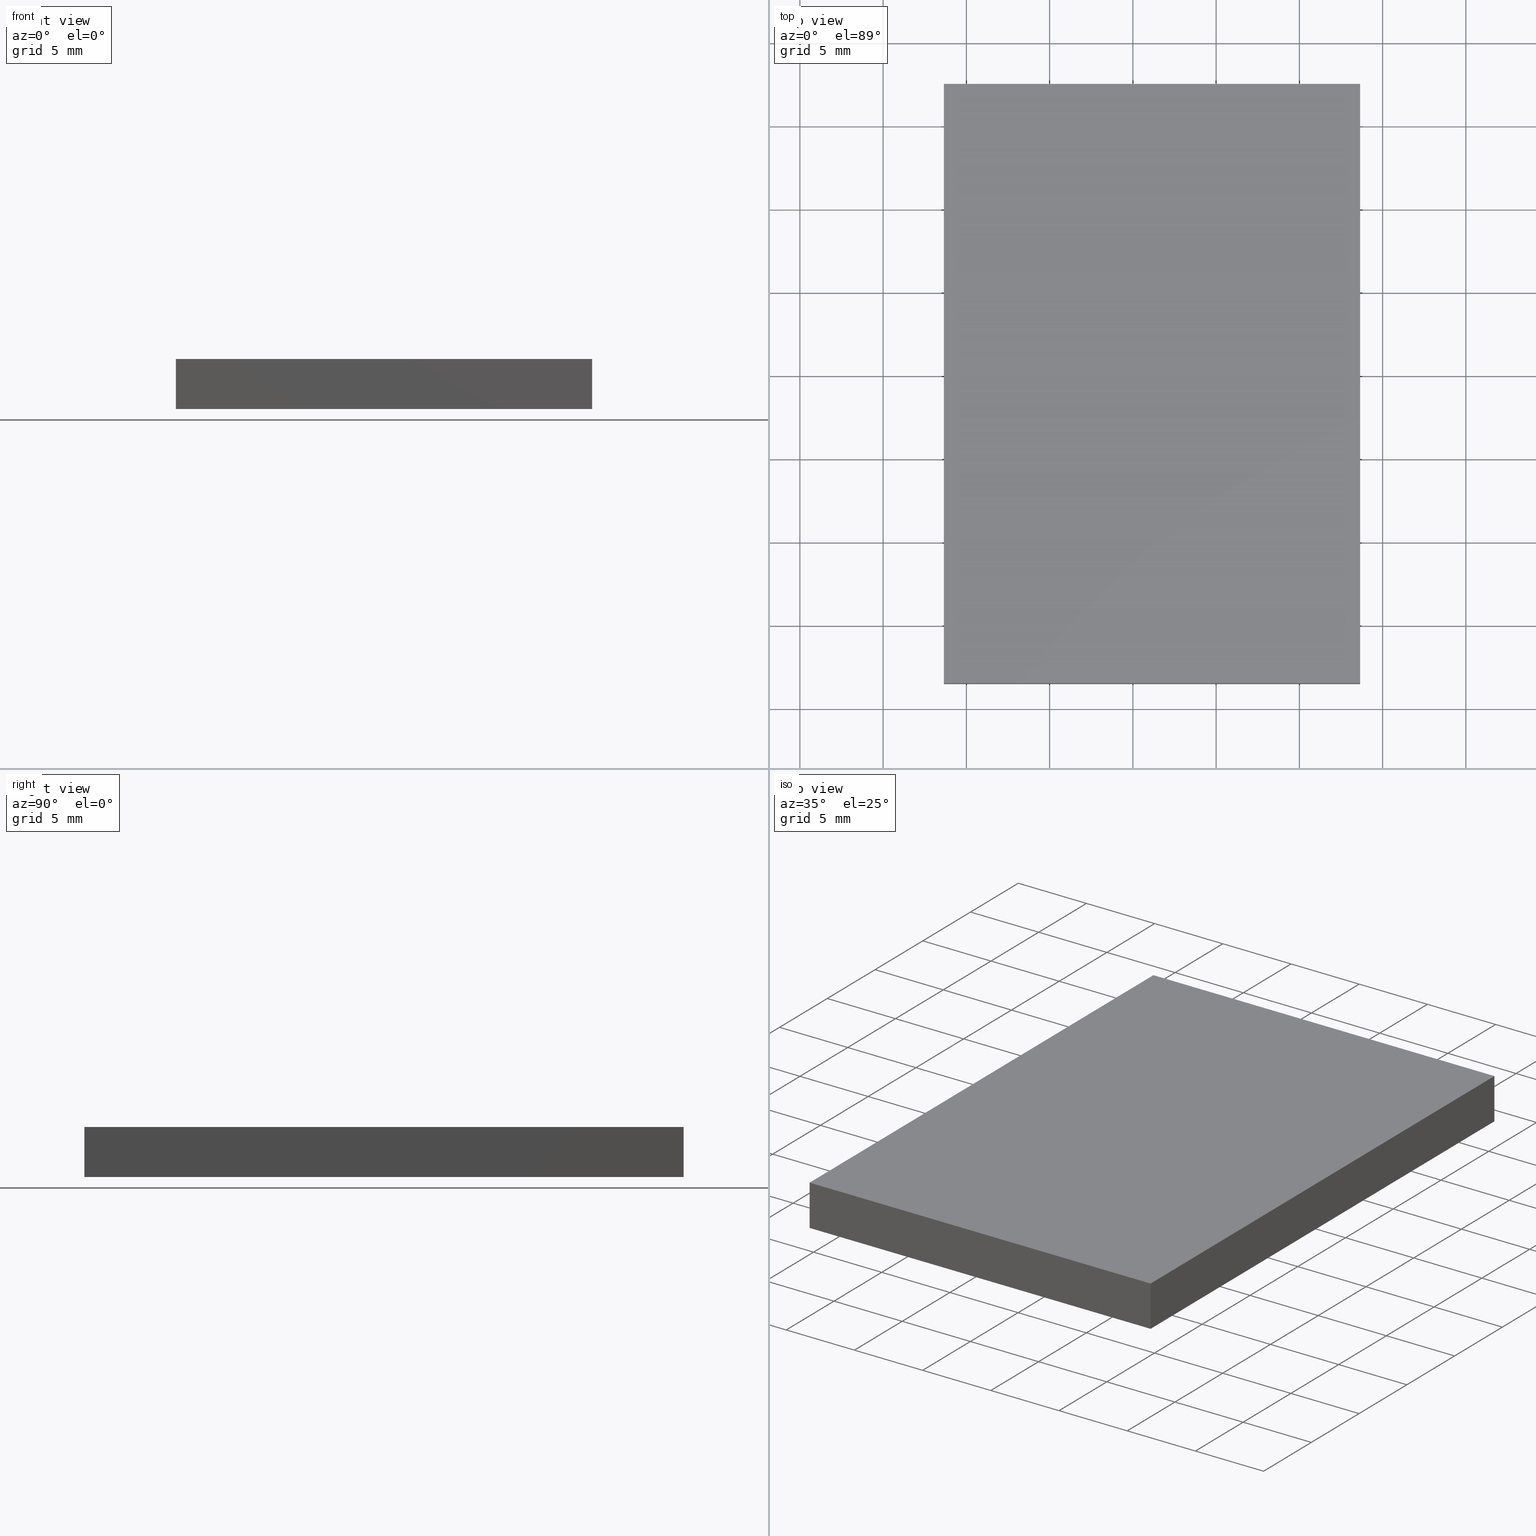
[diagram: canonical four-view strip — front | top / right | iso, engineering-drawing reading convention]
A machine part, canonical four-view strip (front | top / right | iso — engineering-drawing reading convention). The complete STEP part file that produces these views, byte-faithful:
ISO-10303-21;
HEADER;
FILE_DESCRIPTION (( 'STEP AP203' ),
    '1' );
FILE_NAME ('340525.STEP',
    '2019-07-30T07:31:13',
    ( '' ),
    ( '' ),
    'SwSTEP 2.0',
    'SolidWorks 2016',
    '' );
FILE_SCHEMA (( 'CONFIG_CONTROL_DESIGN' ));
ENDSEC;

DATA;
#1 = CARTESIAN_POINT ( 'NONE',  ( -6.351626016260162500, 7.520325203252024700, 3.000000000000000000 ) ) ;
#2 = CC_DESIGN_PERSON_AND_ORGANIZATION_ASSIGNMENT ( #145, #156, ( #206 ) ) ;
#3 = DATE_AND_TIME ( #208, #91 ) ;
#4 = EDGE_LOOP ( 'NONE', ( #311, #129, #125, #105 ) ) ;
#5 = APPROVAL_PERSON_ORGANIZATION ( #273, #241, #52 ) ;
#6 = PRODUCT_DEFINITION ( 'δ֪', '', #33, #267 ) ;
#7 = APPROVAL_STATUS ( 'not_yet_approved' ) ;
#8 = ORIENTED_EDGE ( 'NONE', *, *, #226, .F. ) ;
#9 = AXIS2_PLACEMENT_3D ( 'NONE', #213, #111, #234 ) ;
#10 = PERSON_AND_ORGANIZATION_ROLE ( 'classification_officer' ) ;
#11 = ORIENTED_EDGE ( 'NONE', *, *, #180, .F. ) ;
#12 = DIRECTION ( 'NONE',  ( 1.204669080539449300E-016, -1.000000000000000000, 0.0000000000000000000 ) ) ;
#13 = EDGE_CURVE ( 'NONE', #205, #121, #51, .T. ) ;
#14 =( NAMED_UNIT ( * ) PLANE_ANGLE_UNIT ( ) SI_UNIT ( $, .RADIAN. ) );
#15 = COORDINATED_UNIVERSAL_TIME_OFFSET ( 8, 0, .AHEAD. ) ;
#16 = COORDINATED_UNIVERSAL_TIME_OFFSET ( 8, 0, .AHEAD. ) ;
#17 = DIRECTION ( 'NONE',  ( -0.0000000000000000000, 0.0000000000000000000, 1.000000000000000000 ) ) ;
#18 = ORIENTED_EDGE ( 'NONE', *, *, #250, .T. ) ;
#19 = DIRECTION ( 'NONE',  ( 1.000000000000000000, 0.0000000000000000000, 0.0000000000000000000 ) ) ;
#20 = CARTESIAN_POINT ( 'NONE',  ( -6.351626016260158100, -28.47967479674797200, 3.000000000000000000 ) ) ;
#21 = DIRECTION ( 'NONE',  ( -2.891205793294678800E-016, 1.000000000000000000, -0.0000000000000000000 ) ) ;
#22 = VECTOR ( 'NONE', #42, 1000.000000000000000 ) ;
#23 = SECURITY_CLASSIFICATION ( '', '', #297 ) ;
#24 = DIRECTION ( 'NONE',  ( 0.0000000000000000000, -0.0000000000000000000, -1.000000000000000000 ) ) ;
#25 = LOCAL_TIME ( 15, 31, 13.00000000000000000, #59 ) ;
#26 = PERSON_AND_ORGANIZATION ( #137, #274 ) ;
#27 = VECTOR ( 'NONE', #261, 1000.000000000000000 ) ;
#28 = CARTESIAN_POINT ( 'NONE',  ( -6.351626016260162500, 7.520325203252024700, 0.0000000000000000000 ) ) ;
#29 = ORIENTED_EDGE ( 'NONE', *, *, #250, .F. ) ;
#30 = CC_DESIGN_PERSON_AND_ORGANIZATION_ASSIGNMENT ( #188, #165, ( #86 ) ) ;
#31 = PERSON_AND_ORGANIZATION ( #137, #274 ) ;
#32 = CLOSED_SHELL ( 'NONE', ( #299, #204, #126, #130, #179, #35 ) ) ;
#33 = PRODUCT_DEFINITION_FORMATION_WITH_SPECIFIED_SOURCE ( '�κ�', '', #40, .NOT_KNOWN. ) ;
#34 = AXIS2_PLACEMENT_3D ( 'NONE', #214, #308, #93 ) ;
#35 = ADVANCED_FACE ( 'NONE', ( #263 ), #147, .F. ) ;
#36 = PERSON_AND_ORGANIZATION ( #137, #274 ) ;
#37 = FACE_OUTER_BOUND ( 'NONE', #67, .T. ) ;
#38 = APPROVAL ( #143, 'δָ��' ) ;
#39 = CARTESIAN_POINT ( 'NONE',  ( -6.351626016260162500, 7.520325203252024700, 3.000000000000000000 ) ) ;
#40 = PRODUCT ( '340525', '340525', '', ( #54 ) ) ;
#41 = CARTESIAN_POINT ( 'NONE',  ( -6.351626016260162500, 7.520325203252024700, 3.000000000000000000 ) ) ;
#42 = DIRECTION ( 'NONE',  ( -1.000000000000000000, -0.0000000000000000000, -0.0000000000000000000 ) ) ;
#43 = APPLICATION_CONTEXT ( 'configuration controlled 3d designs of mechanical parts and assemblies' ) ;
#44 = LINE ( 'NONE', #195, #262 ) ;
#45 = EDGE_CURVE ( 'NONE', #205, #182, #237, .T. ) ;
#46 = CARTESIAN_POINT ( 'NONE',  ( 18.64837398373983700, 7.520325203252024700, 3.000000000000000000 ) ) ;
#47 = VECTOR ( 'NONE', #107, 1000.000000000000000 ) ;
#48 = APPROVAL ( #230, 'δָ��' ) ;
#49 = DIRECTION ( 'NONE',  ( 0.0000000000000000000, -1.000000000000000000, 0.0000000000000000000 ) ) ;
#50 = CALENDAR_DATE ( 2019, 30, 7 ) ;
#51 = LINE ( 'NONE', #39, #199 ) ;
#52 = APPROVAL_ROLE ( '' ) ;
#53 = APPROVAL ( #96, 'δָ��' ) ;
#54 = MECHANICAL_CONTEXT ( 'NONE', #142, 'mechanical' ) ;
#55 = LOCAL_TIME ( 15, 31, 13.00000000000000000, #15 ) ;
#56 = ORIENTED_EDGE ( 'NONE', *, *, #45, .F. ) ;
#57 = DATE_AND_TIME ( #50, #298 ) ;
#58 = CARTESIAN_POINT ( 'NONE',  ( 18.64837398373983700, 7.520325203252024700, 3.000000000000000000 ) ) ;
#59 = COORDINATED_UNIVERSAL_TIME_OFFSET ( 8, 0, .AHEAD. ) ;
#60 = APPROVAL_DATE_TIME ( #124, #241 ) ;
#61 = PLANE ( 'NONE',  #231 ) ;
#62 = DIRECTION ( 'NONE',  ( 1.000000000000000000, 0.0000000000000000000, 0.0000000000000000000 ) ) ;
#63 = SECURITY_CLASSIFICATION ( '', '', #252 ) ;
#64 = CARTESIAN_POINT ( 'NONE',  ( -6.351626016260162500, 7.520325203252024700, 0.0000000000000000000 ) ) ;
#65 = CARTESIAN_POINT ( 'NONE',  ( -6.351626016260162500, 7.520325203252024700, 3.000000000000000000 ) ) ;
#66 = APPROVAL_PERSON_ORGANIZATION ( #244, #38, #290 ) ;
#67 = EDGE_LOOP ( 'NONE', ( #296, #114, #8, #161 ) ) ;
#68 = PLANE ( 'NONE',  #193 ) ;
#69 = APPROVAL_DATE_TIME ( #286, #48 ) ;
#70 = APPROVAL ( #175, 'δָ��' ) ;
#71 = VERTEX_POINT ( 'NONE', #58 ) ;
#72 = CARTESIAN_POINT ( 'NONE',  ( -6.351626016260158100, -28.47967479674797200, 3.000000000000000000 ) ) ;
#73 = CALENDAR_DATE ( 2019, 30, 7 ) ;
#74 = LINE ( 'NONE', #64, #301 ) ;
#75 = EDGE_LOOP ( 'NONE', ( #18, #150, #212, #134 ) ) ;
#76 = APPROVAL_STATUS ( 'not_yet_approved' ) ;
#77 = CALENDAR_DATE ( 2019, 30, 7 ) ;
#78 = EDGE_LOOP ( 'NONE', ( #189, #275, #11, #307 ) ) ;
#79 = PERSON_AND_ORGANIZATION_ROLE ( 'design_supplier' ) ;
#80 = CC_DESIGN_PERSON_AND_ORGANIZATION_ASSIGNMENT ( #248, #79, ( #33 ) ) ;
#81 = APPROVAL_DATE_TIME ( #183, #38 ) ;
#82 = DATE_TIME_ROLE ( 'classification_date' ) ;
#83 = VECTOR ( 'NONE', #198, 1000.000000000000000 ) ;
#84 = EDGE_LOOP ( 'NONE', ( #185, #269, #29, #88 ) ) ;
#85 = EDGE_CURVE ( 'NONE', #71, #154, #104, .T. ) ;
#86 = PRODUCT ( '340525', '340525', '', ( #285 ) ) ;
#87 = FACE_OUTER_BOUND ( 'NONE', #75, .T. ) ;
#88 = ORIENTED_EDGE ( 'NONE', *, *, #109, .F. ) ;
#89 = CC_DESIGN_PERSON_AND_ORGANIZATION_ASSIGNMENT ( #305, #220, ( #122 ) ) ;
#90 = DIRECTION ( 'NONE',  ( -1.204669080539449300E-016, 1.000000000000000000, 0.0000000000000000000 ) ) ;
#91 = LOCAL_TIME ( 15, 31, 13.00000000000000000, #132 ) ;
#92 = LOCAL_TIME ( 15, 31, 13.00000000000000000, #196 ) ;
#93 = DIRECTION ( 'NONE',  ( 1.000000000000000000, 0.0000000000000000000, 0.0000000000000000000 ) ) ;
#94 = APPLICATION_PROTOCOL_DEFINITION ( 'international standard', 'config_control_design', 1994, #43 ) ;
#95 = LINE ( 'NONE', #264, #281 ) ;
#96 = APPROVAL_STATUS ( 'not_yet_approved' ) ;
#97 = PERSON_AND_ORGANIZATION_ROLE ( 'design_owner' ) ;
#98 = UNCERTAINTY_MEASURE_WITH_UNIT (LENGTH_MEASURE( 1.000000000000000100E-005 ), #138, 'distance_accuracy_value', 'NONE');
#99 = DATE_AND_TIME ( #228, #123 ) ;
#100 = APPLICATION_CONTEXT ( 'configuration controlled 3d designs of mechanical parts and assemblies' ) ;
#101 = COORDINATED_UNIVERSAL_TIME_OFFSET ( 8, 0, .AHEAD. ) ;
#102 = FACE_OUTER_BOUND ( 'NONE', #78, .T. ) ;
#103 = DATE_AND_TIME ( #215, #55 ) ;
#104 = LINE ( 'NONE', #258, #47 ) ;
#105 = ORIENTED_EDGE ( 'NONE', *, *, #226, .T. ) ;
#106 = AXIS2_PLACEMENT_3D ( 'NONE', #191, #17, #62 ) ;
#107 = DIRECTION ( 'NONE',  ( -0.0000000000000000000, -0.0000000000000000000, -1.000000000000000000 ) ) ;
#108 = CC_DESIGN_SECURITY_CLASSIFICATION ( #63, ( #33 ) ) ;
#109 = EDGE_CURVE ( 'NONE', #257, #224, #44, .T. ) ;
#110 = CARTESIAN_POINT ( 'NONE',  ( -6.351626016260162500, 7.520325203252024700, 3.000000000000000000 ) ) ;
#111 = DIRECTION ( 'NONE',  ( 0.0000000000000000000, 0.0000000000000000000, 1.000000000000000000 ) ) ;
#112 = LOCAL_TIME ( 15, 31, 13.00000000000000000, #203 ) ;
#113 = APPLICATION_PROTOCOL_DEFINITION ( 'international standard', 'config_control_design', 1994, #235 ) ;
#114 = ORIENTED_EDGE ( 'NONE', *, *, #13, .F. ) ;
#115 = DIRECTION ( 'NONE',  ( 1.204669080539449300E-016, -1.000000000000000000, 0.0000000000000000000 ) ) ;
#116 = CARTESIAN_POINT ( 'NONE',  ( 0.0000000000000000000, 0.0000000000000000000, 0.0000000000000000000 ) ) ;
#117 = CALENDAR_DATE ( 2019, 30, 7 ) ;
#118 = EDGE_LOOP ( 'NONE', ( #146, #245, #56, #282 ) ) ;
#119 = COORDINATED_UNIVERSAL_TIME_OFFSET ( 8, 0, .AHEAD. ) ;
#120 = APPROVAL ( #7, 'δָ��' ) ;
#121 = VERTEX_POINT ( 'NONE', #152 ) ;
#122 = PRODUCT_DEFINITION ( 'δ֪', '', #206, #242 ) ;
#123 = LOCAL_TIME ( 15, 31, 13.00000000000000000, #101 ) ;
#124 = DATE_AND_TIME ( #207, #112 ) ;
#125 = ORIENTED_EDGE ( 'NONE', *, *, #184, .T. ) ;
#126 = ADVANCED_FACE ( 'NONE', ( #87 ), #61, .F. ) ;
#127 = CC_DESIGN_DATE_AND_TIME_ASSIGNMENT ( #238, #82, ( #63 ) ) ;
#128 = LINE ( 'NONE', #110, #22 ) ;
#129 = ORIENTED_EDGE ( 'NONE', *, *, #180, .T. ) ;
#130 = ADVANCED_FACE ( 'NONE', ( #37 ), #315, .F. ) ;
#131 = PERSON_AND_ORGANIZATION_ROLE ( 'creator' ) ;
#132 = COORDINATED_UNIVERSAL_TIME_OFFSET ( 8, 0, .AHEAD. ) ;
#133 = LOCAL_TIME ( 15, 31, 13.00000000000000000, #16 ) ;
#134 = ORIENTED_EDGE ( 'NONE', *, *, #300, .T. ) ;
#135 = CC_DESIGN_PERSON_AND_ORGANIZATION_ASSIGNMENT ( #36, #221, ( #6 ) ) ;
#136 = EDGE_CURVE ( 'NONE', #182, #257, #172, .T. ) ;
#137 = PERSON ( 'δָ��', 'δָ��', 'δָ��', ('δָ��'), ('δָ��'), ('δָ��') ) ;
#138 =( LENGTH_UNIT ( ) NAMED_UNIT ( * ) SI_UNIT ( .MILLI., .METRE. ) );
#139 = APPROVAL_PERSON_ORGANIZATION ( #268, #53, #293 ) ;
#140 = LINE ( 'NONE', #46, #27 ) ;
#141 = VERTEX_POINT ( 'NONE', #312 ) ;
#142 = APPLICATION_CONTEXT ( 'configuration controlled 3d designs of mechanical parts and assemblies' ) ;
#143 = APPROVAL_STATUS ( 'not_yet_approved' ) ;
#144 = CC_DESIGN_APPROVAL ( #38, ( #122 ) ) ;
#145 = PERSON_AND_ORGANIZATION ( #137, #274 ) ;
#146 = ORIENTED_EDGE ( 'NONE', *, *, #313, .T. ) ;
#147 = PLANE ( 'NONE',  #271 ) ;
#148 = DIRECTION ( 'NONE',  ( 2.891205793294678800E-016, -1.000000000000000000, 0.0000000000000000000 ) ) ;
#149 = APPROVAL_PERSON_ORGANIZATION ( #31, #120, #251 ) ;
#150 = ORIENTED_EDGE ( 'NONE', *, *, #85, .F. ) ;
#151 = PRODUCT_DEFINITION_SHAPE ( 'NONE', 'NONE',  #122 ) ;
#152 = CARTESIAN_POINT ( 'NONE',  ( -6.351626016260162500, 7.520325203252024700, 0.0000000000000000000 ) ) ;
#153 = EDGE_CURVE ( 'NONE', #154, #121, #211, .T. ) ;
#154 = VERTEX_POINT ( 'NONE', #314 ) ;
#155 = APPLICATION_PROTOCOL_DEFINITION ( 'international standard', 'config_control_design', 1994, #142 ) ;
#156 = PERSON_AND_ORGANIZATION_ROLE ( 'design_supplier' ) ;
#157 = PERSON_AND_ORGANIZATION ( #137, #274 ) ;
#158 = APPROVAL_ROLE ( '' ) ;
#159 = FACE_OUTER_BOUND ( 'NONE', #118, .T. ) ;
#160 = CC_DESIGN_DATE_AND_TIME_ASSIGNMENT ( #57, #240, ( #122 ) ) ;
#161 = ORIENTED_EDGE ( 'NONE', *, *, #85, .T. ) ;
#162 = DIRECTION ( 'NONE',  ( 1.000000000000000000, 0.0000000000000000000, 0.0000000000000000000 ) ) ;
#163 = CALENDAR_DATE ( 2019, 30, 7 ) ;
#164 = CARTESIAN_POINT ( 'NONE',  ( 18.64837398373984800, -28.47967479674797200, 3.000000000000000000 ) ) ;
#165 = PERSON_AND_ORGANIZATION_ROLE ( 'design_owner' ) ;
#166 = APPROVAL_DATE_TIME ( #99, #70 ) ;
#167 = DIRECTION ( 'NONE',  ( 0.0000000000000000000, 1.000000000000000000, 0.0000000000000000000 ) ) ;
#168 = CARTESIAN_POINT ( 'NONE',  ( -6.351626016260162500, 7.520325203252024700, 3.000000000000000000 ) ) ;
#169 = VECTOR ( 'NONE', #272, 1000.000000000000000 ) ;
#170 = CARTESIAN_POINT ( 'NONE',  ( 18.64837398373983700, 7.520325203252024700, 3.000000000000000000 ) ) ;
#171 = APPROVAL_PERSON_ORGANIZATION ( #310, #48, #158 ) ;
#172 = LINE ( 'NONE', #217, #169 ) ;
#173 = VECTOR ( 'NONE', #12, 1000.000000000000000 ) ;
#174 = AXIS2_PLACEMENT_3D ( 'NONE', #266, #167, #187 ) ;
#175 = APPROVAL_STATUS ( 'not_yet_approved' ) ;
#176 = APPROVAL_DATE_TIME ( #103, #120 ) ;
#177 = SHAPE_DEFINITION_REPRESENTATION ( #227, #260 ) ;
#178 = CC_DESIGN_PERSON_AND_ORGANIZATION_ASSIGNMENT ( #236, #10, ( #63 ) ) ;
#179 = ADVANCED_FACE ( 'NONE', ( #295 ), #304, .T. ) ;
#180 = EDGE_CURVE ( 'NONE', #182, #141, #288, .T. ) ;
#181 = DATE_AND_TIME ( #73, #133 ) ;
#182 = VERTEX_POINT ( 'NONE', #20 ) ;
#183 = DATE_AND_TIME ( #163, #92 ) ;
#184 = EDGE_CURVE ( 'NONE', #141, #71, #140, .T. ) ;
#185 = ORIENTED_EDGE ( 'NONE', *, *, #313, .F. ) ;
#186 = PLANE ( 'NONE',  #174 ) ;
#187 = DIRECTION ( 'NONE',  ( 0.0000000000000000000, -0.0000000000000000000, 1.000000000000000000 ) ) ;
#188 = PERSON_AND_ORGANIZATION ( #137, #274 ) ;
#189 = ORIENTED_EDGE ( 'NONE', *, *, #109, .T. ) ;
#190 = CARTESIAN_POINT ( 'NONE',  ( -6.351626016260158100, -28.47967479674797200, 0.0000000000000000000 ) ) ;
#191 = CARTESIAN_POINT ( 'NONE',  ( 0.0000000000000000000, 0.0000000000000000000, 3.000000000000000000 ) ) ;
#192 = CC_DESIGN_SECURITY_CLASSIFICATION ( #23, ( #206 ) ) ;
#193 = AXIS2_PLACEMENT_3D ( 'NONE', #41, #209, #90 ) ;
#194 = LOCAL_TIME ( 15, 31, 13.00000000000000000, #255 ) ;
#195 = CARTESIAN_POINT ( 'NONE',  ( -6.351626016260158100, -28.47967479674797200, 0.0000000000000000000 ) ) ;
#196 = COORDINATED_UNIVERSAL_TIME_OFFSET ( 8, 0, .AHEAD. ) ;
#197 = CC_DESIGN_APPROVAL ( #48, ( #33 ) ) ;
#198 = DIRECTION ( 'NONE',  ( -1.000000000000000000, -0.0000000000000000000, -0.0000000000000000000 ) ) ;
#199 = VECTOR ( 'NONE', #289, 1000.000000000000000 ) ;
#200 = APPLICATION_PROTOCOL_DEFINITION ( 'international standard', 'config_control_design', 1994, #100 ) ;
#201 = DATE_TIME_ROLE ( 'classification_date' ) ;
#202 = COORDINATED_UNIVERSAL_TIME_OFFSET ( 8, 0, .AHEAD. ) ;
#203 = COORDINATED_UNIVERSAL_TIME_OFFSET ( 8, 0, .AHEAD. ) ;
#204 = ADVANCED_FACE ( 'NONE', ( #102 ), #186, .F. ) ;
#205 = VERTEX_POINT ( 'NONE', #65 ) ;
#206 = PRODUCT_DEFINITION_FORMATION_WITH_SPECIFIED_SOURCE ( '�κ�', '', #86, .NOT_KNOWN. ) ;
#207 = CALENDAR_DATE ( 2019, 30, 7 ) ;
#208 = CALENDAR_DATE ( 2019, 30, 7 ) ;
#209 = DIRECTION ( 'NONE',  ( 1.000000000000000000, 1.204669080539449300E-016, -0.0000000000000000000 ) ) ;
#210 = CC_DESIGN_APPROVAL ( #120, ( #63 ) ) ;
#211 = LINE ( 'NONE', #28, #83 ) ;
#212 = ORIENTED_EDGE ( 'NONE', *, *, #184, .F. ) ;
#213 = CARTESIAN_POINT ( 'NONE',  ( 0.0000000000000000000, 0.0000000000000000000, 0.0000000000000000000 ) ) ;
#214 = CARTESIAN_POINT ( 'NONE',  ( 0.0000000000000000000, 0.0000000000000000000, 0.0000000000000000000 ) ) ;
#215 = CALENDAR_DATE ( 2019, 30, 7 ) ;
#216 = LINE ( 'NONE', #164, #253 ) ;
#217 = CARTESIAN_POINT ( 'NONE',  ( -6.351626016260158100, -28.47967479674797200, 3.000000000000000000 ) ) ;
#218 = MANIFOLD_SOLID_BREP ( '͹̨-����1', #32 ) ;
#219 = PERSON_AND_ORGANIZATION ( #137, #274 ) ;
#220 = PERSON_AND_ORGANIZATION_ROLE ( 'creator' ) ;
#221 = PERSON_AND_ORGANIZATION_ROLE ( 'creator' ) ;
#222 = PERSON_AND_ORGANIZATION ( #137, #274 ) ;
#223 = VECTOR ( 'NONE', #19, 1000.000000000000000 ) ;
#224 = VERTEX_POINT ( 'NONE', #287 ) ;
#225 = PRODUCT_RELATED_PRODUCT_CATEGORY ( 'detail', '', ( #86 ) ) ;
#226 = EDGE_CURVE ( 'NONE', #71, #205, #128, .T. ) ;
#227 = PRODUCT_DEFINITION_SHAPE ( 'NONE', 'NONE',  #6 ) ;
#228 = CALENDAR_DATE ( 2019, 30, 7 ) ;
#229 = DATE_TIME_ROLE ( 'creation_date' ) ;
#230 = APPROVAL_STATUS ( 'not_yet_approved' ) ;
#231 = AXIS2_PLACEMENT_3D ( 'NONE', #170, #294, #148 ) ;
#232 = CC_DESIGN_PERSON_AND_ORGANIZATION_ASSIGNMENT ( #26, #246, ( #23 ) ) ;
#233 = DATE_AND_TIME ( #284, #243 ) ;
#234 = DIRECTION ( 'NONE',  ( 1.000000000000000000, 0.0000000000000000000, 0.0000000000000000000 ) ) ;
#235 = APPLICATION_CONTEXT ( 'configuration controlled 3d designs of mechanical parts and assemblies' ) ;
#236 = PERSON_AND_ORGANIZATION ( #137, #274 ) ;
#237 = LINE ( 'NONE', #168, #173 ) ;
#238 = DATE_AND_TIME ( #117, #194 ) ;
#239 = APPROVAL_DATE_TIME ( #233, #53 ) ;
#240 = DATE_TIME_ROLE ( 'creation_date' ) ;
#241 = APPROVAL ( #76, 'δָ��' ) ;
#242 = DESIGN_CONTEXT ( 'detailed design', #43, 'design' ) ;
#243 = LOCAL_TIME ( 15, 31, 13.00000000000000000, #119 ) ;
#244 = PERSON_AND_ORGANIZATION ( #137, #274 ) ;
#245 = ORIENTED_EDGE ( 'NONE', *, *, #136, .F. ) ;
#246 = PERSON_AND_ORGANIZATION_ROLE ( 'classification_officer' ) ;
#247 = PERSON_AND_ORGANIZATION_ROLE ( 'creator' ) ;
#248 = PERSON_AND_ORGANIZATION ( #137, #274 ) ;
#249 = CC_DESIGN_APPROVAL ( #241, ( #23 ) ) ;
#250 = EDGE_CURVE ( 'NONE', #224, #154, #95, .T. ) ;
#251 = APPROVAL_ROLE ( '' ) ;
#252 = SECURITY_CLASSIFICATION_LEVEL ( 'unclassified' ) ;
#253 = VECTOR ( 'NONE', #259, 1000.000000000000000 ) ;
#254 = CC_DESIGN_PERSON_AND_ORGANIZATION_ASSIGNMENT ( #222, #131, ( #33 ) ) ;
#255 = COORDINATED_UNIVERSAL_TIME_OFFSET ( 8, 0, .AHEAD. ) ;
#256 = DIRECTION ( 'NONE',  ( -0.0000000000000000000, 0.0000000000000000000, 1.000000000000000000 ) ) ;
#257 = VERTEX_POINT ( 'NONE', #190 ) ;
#258 = CARTESIAN_POINT ( 'NONE',  ( 18.64837398373983700, 7.520325203252024700, 3.000000000000000000 ) ) ;
#259 = DIRECTION ( 'NONE',  ( -0.0000000000000000000, -0.0000000000000000000, -1.000000000000000000 ) ) ;
#260 = ADVANCED_BREP_SHAPE_REPRESENTATION ( '340525', ( #218, #34 ), #280 ) ;
#261 = DIRECTION ( 'NONE',  ( -2.891205793294678800E-016, 1.000000000000000000, -0.0000000000000000000 ) ) ;
#262 = VECTOR ( 'NONE', #162, 1000.000000000000000 ) ;
#263 = FACE_OUTER_BOUND ( 'NONE', #84, .T. ) ;
#264 = CARTESIAN_POINT ( 'NONE',  ( 18.64837398373983700, 7.520325203252024700, 0.0000000000000000000 ) ) ;
#265 = AXIS2_PLACEMENT_3D ( 'NONE', #1, #49, #24 ) ;
#266 = CARTESIAN_POINT ( 'NONE',  ( -6.351626016260158100, -28.47967479674797200, 3.000000000000000000 ) ) ;
#267 = DESIGN_CONTEXT ( 'detailed design', #100, 'design' ) ;
#268 = PERSON_AND_ORGANIZATION ( #137, #274 ) ;
#269 = ORIENTED_EDGE ( 'NONE', *, *, #153, .F. ) ;
#270 = CC_DESIGN_APPROVAL ( #70, ( #6 ) ) ;
#271 = AXIS2_PLACEMENT_3D ( 'NONE', #116, #256, #309 ) ;
#272 = DIRECTION ( 'NONE',  ( -0.0000000000000000000, -0.0000000000000000000, -1.000000000000000000 ) ) ;
#273 = PERSON_AND_ORGANIZATION ( #137, #274 ) ;
#274 = ORGANIZATION ( 'δָ��', 'δָ��', '' ) ;
#275 = ORIENTED_EDGE ( 'NONE', *, *, #300, .F. ) ;
#276 = APPROVAL_ROLE ( '' ) ;
#277 = CC_DESIGN_APPROVAL ( #53, ( #206 ) ) ;
#278 = APPROVAL_PERSON_ORGANIZATION ( #157, #70, #276 ) ;
#279 = PRODUCT_RELATED_PRODUCT_CATEGORY ( 'detail', '', ( #40 ) ) ;
#280 =( GEOMETRIC_REPRESENTATION_CONTEXT ( 3 ) GLOBAL_UNCERTAINTY_ASSIGNED_CONTEXT ( ( #98 ) ) GLOBAL_UNIT_ASSIGNED_CONTEXT ( ( #138, #14, #302 ) ) REPRESENTATION_CONTEXT ( 'NONE', 'WORKASPACE' ) );
#281 = VECTOR ( 'NONE', #21, 1000.000000000000000 ) ;
#282 = ORIENTED_EDGE ( 'NONE', *, *, #13, .T. ) ;
#283 = CC_DESIGN_DATE_AND_TIME_ASSIGNMENT ( #3, #229, ( #6 ) ) ;
#284 = CALENDAR_DATE ( 2019, 30, 7 ) ;
#285 = MECHANICAL_CONTEXT ( 'NONE', #235, 'mechanical' ) ;
#286 = DATE_AND_TIME ( #77, #25 ) ;
#287 = CARTESIAN_POINT ( 'NONE',  ( 18.64837398373984800, -28.47967479674797200, 0.0000000000000000000 ) ) ;
#288 = LINE ( 'NONE', #72, #223 ) ;
#289 = DIRECTION ( 'NONE',  ( -0.0000000000000000000, -0.0000000000000000000, -1.000000000000000000 ) ) ;
#290 = APPROVAL_ROLE ( '' ) ;
#291 = CC_DESIGN_PERSON_AND_ORGANIZATION_ASSIGNMENT ( #306, #97, ( #40 ) ) ;
#292 = CC_DESIGN_PERSON_AND_ORGANIZATION_ASSIGNMENT ( #219, #247, ( #206 ) ) ;
#293 = APPROVAL_ROLE ( '' ) ;
#294 = DIRECTION ( 'NONE',  ( -1.000000000000000000, -2.891205793294678800E-016, 0.0000000000000000000 ) ) ;
#295 = FACE_OUTER_BOUND ( 'NONE', #4, .T. ) ;
#296 = ORIENTED_EDGE ( 'NONE', *, *, #153, .T. ) ;
#297 = SECURITY_CLASSIFICATION_LEVEL ( 'unclassified' ) ;
#298 = LOCAL_TIME ( 15, 31, 13.00000000000000000, #202 ) ;
#299 = ADVANCED_FACE ( 'NONE', ( #159 ), #68, .F. ) ;
#300 = EDGE_CURVE ( 'NONE', #141, #224, #216, .T. ) ;
#301 = VECTOR ( 'NONE', #115, 1000.000000000000000 ) ;
#302 =( NAMED_UNIT ( * ) SI_UNIT ( $, .STERADIAN. ) SOLID_ANGLE_UNIT ( ) );
#303 = CC_DESIGN_DATE_AND_TIME_ASSIGNMENT ( #181, #201, ( #23 ) ) ;
#304 = PLANE ( 'NONE',  #106 ) ;
#305 = PERSON_AND_ORGANIZATION ( #137, #274 ) ;
#306 = PERSON_AND_ORGANIZATION ( #137, #274 ) ;
#307 = ORIENTED_EDGE ( 'NONE', *, *, #136, .T. ) ;
#308 = DIRECTION ( 'NONE',  ( 0.0000000000000000000, 0.0000000000000000000, 1.000000000000000000 ) ) ;
#309 = DIRECTION ( 'NONE',  ( 1.000000000000000000, 0.0000000000000000000, 0.0000000000000000000 ) ) ;
#310 = PERSON_AND_ORGANIZATION ( #137, #274 ) ;
#311 = ORIENTED_EDGE ( 'NONE', *, *, #45, .T. ) ;
#312 = CARTESIAN_POINT ( 'NONE',  ( 18.64837398373984800, -28.47967479674797200, 3.000000000000000000 ) ) ;
#313 = EDGE_CURVE ( 'NONE', #121, #257, #74, .T. ) ;
#314 = CARTESIAN_POINT ( 'NONE',  ( 18.64837398373983700, 7.520325203252024700, 0.0000000000000000000 ) ) ;
#315 = PLANE ( 'NONE',  #265 ) ;
ENDSEC;
END-ISO-10303-21;
